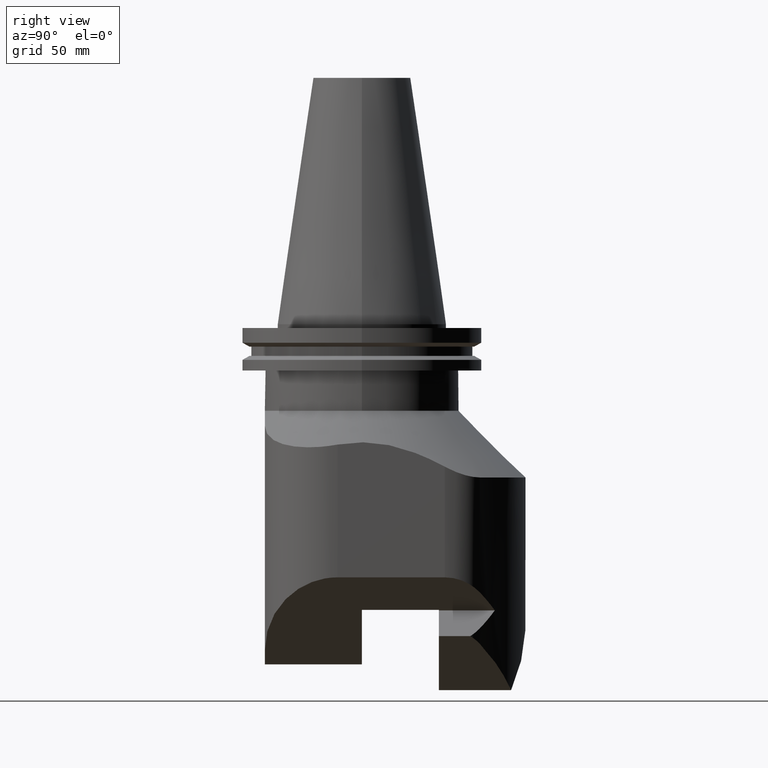
[diagram: clean part render]
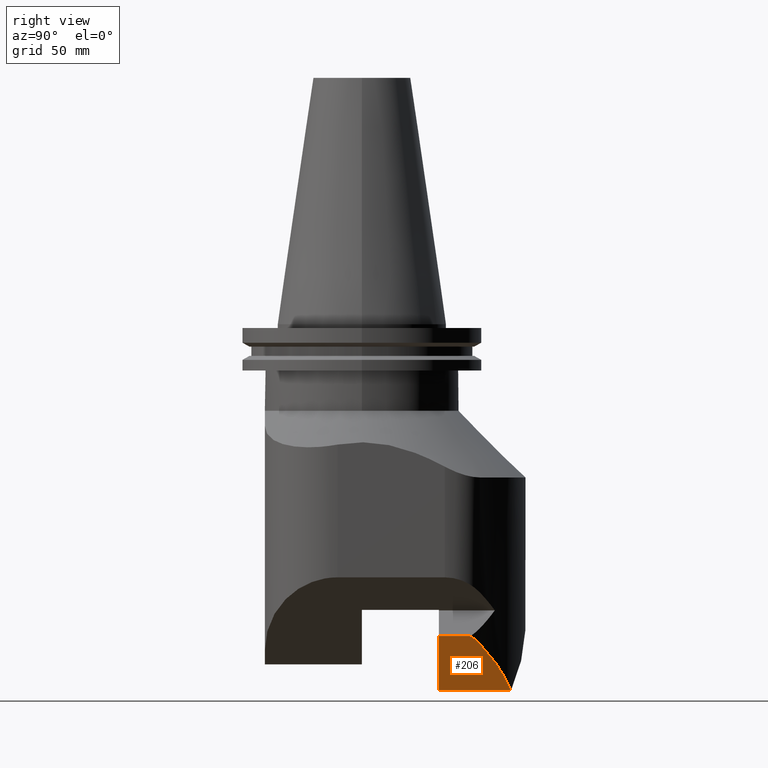
[diagram: same view with one face highlighted and labeled with its STEP entity id]
A machine part, right view. The second image highlights one B-rep face of the part: STEP entity #206.
In plain terms, the highlighted planar face has unit normal (-0.7071, 0, 0.7071).
Its self-contained STEP definition (entity closure, byte-faithful):
#140=EDGE_CURVE('Unnamed[1]',#377,#357,#378,.T.);
#175=EDGE_CURVE('Unnamed[1]',#432,#377,#433,.T.);
#194=EDGE_CURVE('Unnamed[1]',#458,#455,#459,.T.);
#206=ADVANCED_FACE('Unnamed[1]',(#476),#477,.F.);
#266=EDGE_CURVE('Unnamed[1]',#357,#458,#556,.T.);
#283=EDGE_CURVE('Unnamed[1]',#432,#455,#577,.T.);
#357=VERTEX_POINT('',#681);
#377=VERTEX_POINT('',#709);
#378=ELLIPSE('',#710,28.2842712474594,19.9999999999986);
#432=VERTEX_POINT('',#794);
#433=LINE('',#795,#796);
#455=VERTEX_POINT('',#826);
#458=VERTEX_POINT('',#831);
#459=LINE('',#832,#833);
#476=FACE_OUTER_BOUND('',#856,.T.);
#477=PLANE('',#857);
#556=ELLIPSE('',#984,95.4594154601836,67.5000000000011);
#577=LINE('',#1039,#1040);
#681=CARTESIAN_POINT('',(46.8947368421008,48.5503208692747,-131.658185876272));
#709=CARTESIAN_POINT('',(49.9924494298876,44.7128679885993,-128.560473288485));
#710=AXIS2_PLACEMENT_3D('',#1149,#1150,#1151);
#794=CARTESIAN_POINT('',(49.9924494298876,31.7500000000016,-128.560473288485));
#795=CARTESIAN_POINT('',(49.9924494298876,-5.07472668661047E-014,-128.560473288485));
#796=VECTOR('',#1199,1.0);
#826=CARTESIAN_POINT('',(27.7185858225114,31.7500000000016,-150.834336895861));
#831=CARTESIAN_POINT('',(27.7185858225111,61.5461615375015,-150.834336895861));
#832=CARTESIAN_POINT('',(27.718585822511,-4.58014756212506E-014,-150.834336895861));
#833=VECTOR('',#1232,1.0);
#856=EDGE_LOOP('',(#1247,#1248,#1249,#1250,#1251));
#857=AXIS2_PLACEMENT_3D('',#1252,#1253,#1254);
#984=AXIS2_PLACEMENT_3D('',#1341,#1342,#1343);
#1039=CARTESIAN_POINT('',(33.287051724355,31.7500000000016,-145.265870994017));
#1040=VECTOR('',#1374,1.0);
#1149=CARTESIAN_POINT('',(32.9999999999981,34.165040611713,-145.552922718374));
#1150=DIRECTION('',(-0.707106781186534,4.7102773760513E-016,0.707106781186561));
#1151=DIRECTION('',(-0.707106781186561,2.43604851491938E-016,-0.707106781186534));
#1199=DIRECTION('',(4.44089209850063E-016,1.0,-2.22044604925031E-016));
#1232=DIRECTION('',(-4.44089209850063E-016,-1.0,2.22044604925031E-016));
#1247=ORIENTED_EDGE('',*,*,#283,.T.);
#1248=ORIENTED_EDGE('',*,*,#194,.F.);
#1249=ORIENTED_EDGE('',*,*,#266,.F.);
#1250=ORIENTED_EDGE('',*,*,#140,.F.);
#1251=ORIENTED_EDGE('',*,*,#175,.F.);
#1252=CARTESIAN_POINT('',(38.8555176261993,-4.82743712436776E-014,-139.697405092173));
#1253=DIRECTION('',(-0.707106781186534,4.71027737605129E-016,0.707106781186561));
#1254=DIRECTION('',(-0.707106781186561,1.57009245868387E-016,-0.707106781186534));
#1341=CARTESIAN_POINT('',(2.18664265285457E-014,-3.96467131832103E-014,-178.552922718371));
#1342=DIRECTION('',(-0.707106781186534,4.7102773760513E-016,0.707106781186561));
#1343=DIRECTION('',(0.707106781186561,-1.57009245868387E-016,0.707106781186534));
#1374=DIRECTION('',(-0.707106781186561,7.89991402439939E-016,-0.707106781186534));